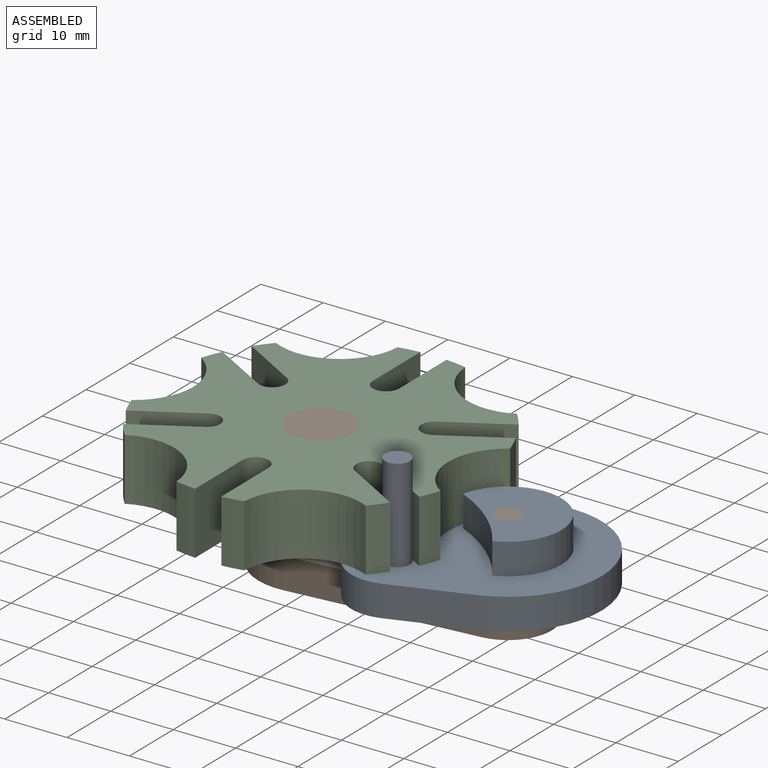
[diagram: assembled view]
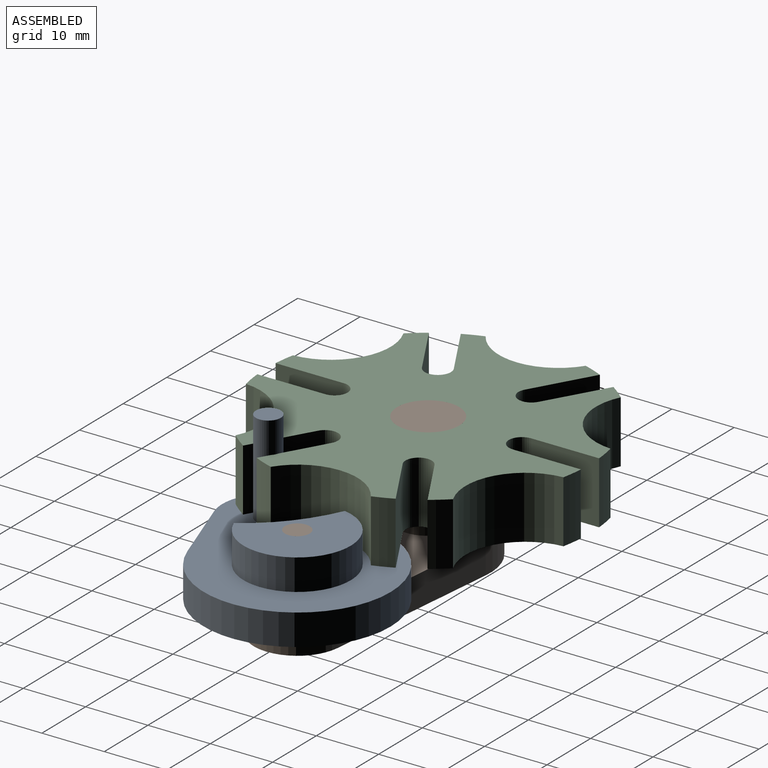
[diagram: assembled view, second angle]
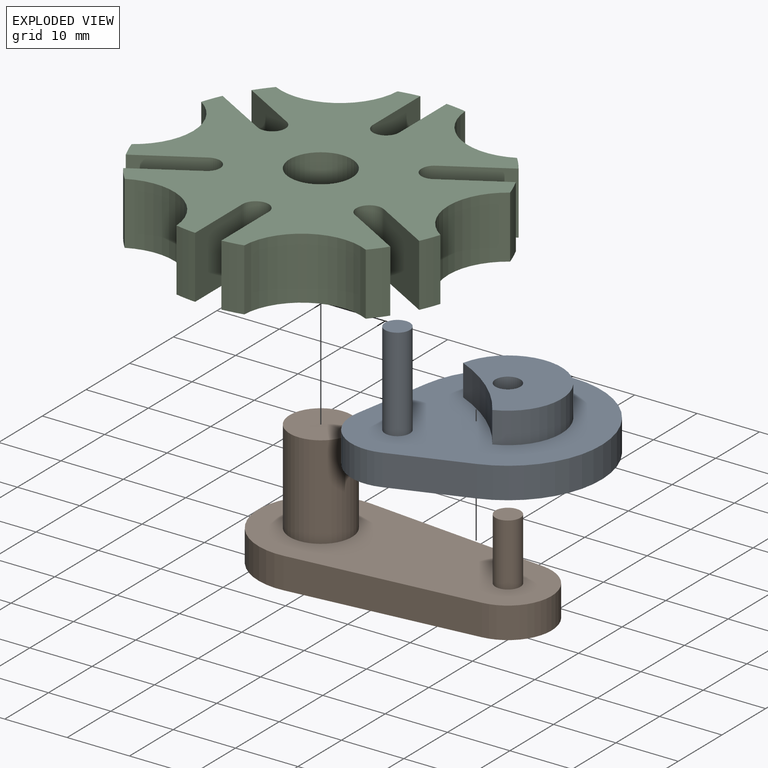
[diagram: exploded view]
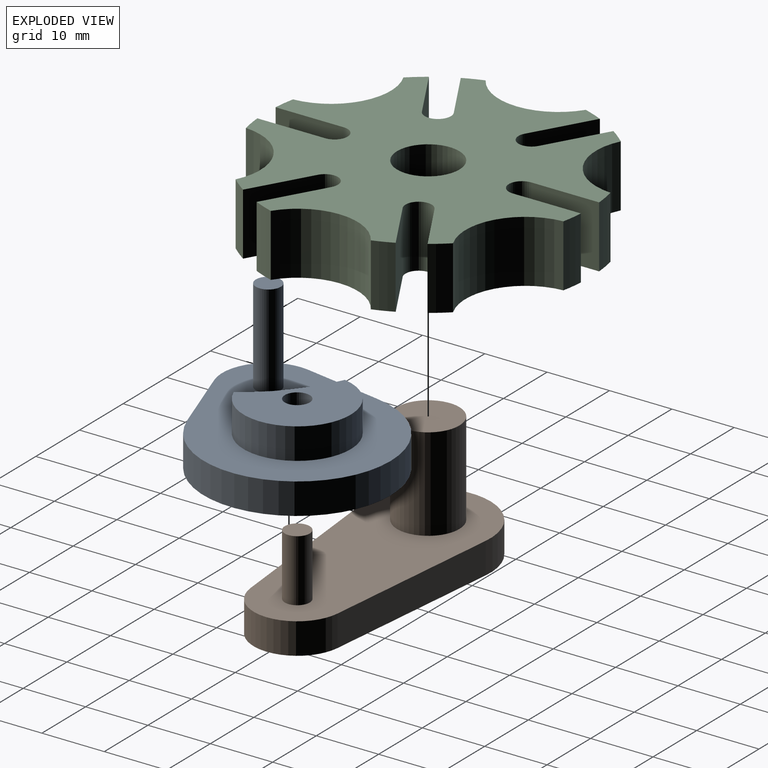
[diagram: exploded view, second angle]
ASSEMBLY  parts=3 mates=2
PART A: 12 faces, bbox 37.4x20x30 mm
  f0: plane 37.4x30mm, normal (0,-1,0), area 634mm2, adj f1,f2,f3,f4,f6,f7,f9
  f1: plane 11.15x6.55mm, normal (-0.51,0,-0.86), area 64.7mm2, adj f0,f2,f4,f5
  f2: cylinder r=15mm len=30mm, axis (0,-1,0), area 315.3mm2, adj f0,f1,f3,f5
  f3: plane 11.15x6.55mm, normal (-0.51,0,0.86), area 64.7mm2, adj f0,f2,f4,f5
  f4: cylinder r=7.4mm len=12.76mm, axis (0,-1,0), area 76.9mm2, adj f0,f1,f3,f5
  f5: plane 37.4x30mm, normal (0,1,0), area 807mm2, adj f1,f2,f3,f4,f11
  f6: cylinder r=26.98mm len=15.12mm, axis (0,1,0), area 76.6mm2, adj f0,f7,f8
  f7: cylinder r=8.6mm len=17.2mm, axis (0,1,0), area 177.8mm2, adj f0,f6,f8
  f8: plane 17.2x12.7mm, normal (0,-1,0), area 160.4mm2, adj f6,f7,f11
  f9: cylinder r=2mm len=15mm, axis (0,1,0), area 188.5mm2, adj f0,f10
  f10: plane 4x4mm, normal (0,-1,0), area 12.6mm2, adj f9
  f11: cylinder r=2mm len=10mm, axis (0,1,0), area 125.7mm2, adj f5,f8
PART B: 10 faces, bbox 47x20x20 mm
  f0: cylinder r=2mm len=10mm, axis (0,-1,0), area 125.7mm2, adj f1,f6
  f1: plane 4x4mm, normal (0,-1,0), area 12.6mm2, adj f0
  f2: plane 29.7x5mm, normal (0.1,0,-0.99), area 149.2mm2, adj f3,f5,f6,f7
  f3: cylinder r=10mm len=20mm, axis (0,1,0), area 167.1mm2, adj f2,f4,f6,f7
  f4: plane 29.7x5mm, normal (0.1,0,0.99), area 149.2mm2, adj f3,f5,f6,f7
  f5: cylinder r=7mm len=13.93mm, axis (0,1,0), area 102.9mm2, adj f2,f4,f6,f7
  f6: plane 47x20mm, normal (0,-1,0), area 655.5mm2, adj f0,f2,f3,f4,f5,f8
  f7: plane 47x20mm, normal (0,1,0), area 746.6mm2, adj f2,f3,f4,f5
  f8: cylinder r=5mm len=15mm, axis (0,1,0), area 471.2mm2, adj f6,f9
  f9: plane 10x10mm, normal (0,-1,0), area 78.5mm2, adj f8
PART C: 39 faces, bbox 49.4x10x51.8 mm
  f0: cylinder r=25.98mm len=10mm, axis (0,1,0), area 33.5mm2, adj f1,f36,f37,f38
  f1: plane 10x9.44mm, normal (-0.5,0,0.87), area 109mm2, adj f0,f2,f37,f38
  f2: cylinder r=2.1mm len=10mm, axis (0,1,0), area 66mm2, adj f1,f3,f37,f38
  f3: plane 10x9.44mm, normal (0.5,0,-0.87), area 109mm2, adj f2,f4,f37,f38
  f4: cylinder r=25.98mm len=10mm, axis (0,1,0), area 33.5mm2, adj f3,f5,f37,f38
  f5: cylinder r=9.6mm len=13.88mm, axis (0,1,0), area 189.6mm2, adj f4,f6,f37,f38
  f6: cylinder r=25.98mm len=10mm, axis (0,1,0), area 33.5mm2, adj f5,f7,f37,f38
  f7: plane 10.9x10mm, normal (-1,0,0), area 109mm2, adj f6,f8,f37,f38
  f8: cylinder r=2.1mm len=10mm, axis (0,1,0), area 66mm2, adj f7,f9,f37,f38
  f9: plane 10.9x10mm, normal (1,0,0), area 109mm2, adj f8,f10,f37,f38
  f10: cylinder r=25.98mm len=10mm, axis (0,1,0), area 33.5mm2, adj f9,f11,f37,f38
  f11: cylinder r=9.6mm len=13.88mm, axis (0,1,0), area 189.6mm2, adj f10,f12,f37,f38
  f12: cylinder r=25.98mm len=10mm, axis (0,1,0), area 33.5mm2, adj f11,f13,f37,f38
  f13: plane 10x9.44mm, normal (-0.5,0,-0.87), area 109mm2, adj f12,f14,f37,f38
  f14: cylinder r=2.1mm len=10mm, axis (0,1,0), area 66mm2, adj f13,f15,f37,f38
  f15: plane 10x9.44mm, normal (0.5,0,0.87), area 109mm2, adj f14,f16,f37,f38
  f16: cylinder r=25.98mm len=10mm, axis (0,1,0), area 33.5mm2, adj f15,f17,f37,f38
  f17: cylinder r=9.6mm len=16.03mm, axis (0,1,0), area 189.6mm2, adj f16,f18,f37,f38
  f18: cylinder r=25.98mm len=10mm, axis (0,1,0), area 33.5mm2, adj f17,f19,f37,f38
  f19: plane 10x9.44mm, normal (0.5,0,-0.87), area 109mm2, adj f18,f20,f37,f38
  f20: cylinder r=2.1mm len=10mm, axis (0,1,0), area 66mm2, adj f19,f21,f37,f38
  f21: plane 10x9.44mm, normal (-0.5,0,0.87), area 109mm2, adj f20,f22,f37,f38
  f22: cylinder r=25.98mm len=10mm, axis (0,1,0), area 33.5mm2, adj f21,f23,f37,f38
  f23: cylinder r=9.6mm len=13.88mm, axis (0,1,0), area 189.6mm2, adj f22,f24,f37,f38
  f24: cylinder r=25.98mm len=10mm, axis (0,1,0), area 33.5mm2, adj f23,f25,f37,f38
  f25: plane 10.9x10mm, normal (1,0,0), area 109mm2, adj f24,f26,f37,f38
  f26: cylinder r=2.1mm len=10mm, axis (0,1,0), area 66mm2, adj f25,f27,f37,f38
  f27: plane 10.9x10mm, normal (-1,0,0), area 109mm2, adj f26,f28,f37,f38
  f28: cylinder r=25.98mm len=10mm, axis (0,1,0), area 33.5mm2, adj f27,f29,f37,f38
  f29: cylinder r=9.6mm len=13.88mm, axis (0,1,0), area 189.6mm2, adj f28,f30,f37,f38
  f30: cylinder r=25.98mm len=10mm, axis (0,1,0), area 33.5mm2, adj f29,f31,f37,f38
  f31: plane 10x9.44mm, normal (0.5,0,0.87), area 109mm2, adj f30,f32,f37,f38
  f32: cylinder r=2.1mm len=10mm, axis (0,1,0), area 66mm2, adj f31,f33,f37,f38
  f33: plane 10x9.44mm, normal (-0.5,0,-0.87), area 109mm2, adj f32,f34,f37,f38
  f34: cylinder r=25.98mm len=10mm, axis (0,1,0), area 33.5mm2, adj f33,f36,f37,f38
  f35: cylinder r=5mm len=10mm, axis (0,1,0), area 314.2mm2, adj f37,f38
  f36: cylinder r=9.6mm len=16.03mm, axis (0,1,0), area 189.6mm2, adj f0,f34,f37,f38
  f37: plane 51.79x49.43mm, normal (0,-1,0), area 1350.9mm2, adj f0,f1,f2,f3,f4,f5,f6,f7
  f38: plane 51.79x49.43mm, normal (0,1,0), area 1350.9mm2, adj f0,f1,f2,f3,f4,f5,f6,f7
PLACE A rot(axis=(-0.84,-0.39,0.39),100.2deg) t=(-1.69,-21.51,7.66)mm
PLACE B rot(axis=(-1,0,0),90deg) t=(-12.27,1.36,7.66)mm fixed
PLACE C rot(axis=(-1,0,0),90deg) t=(-12.27,1.36,7.66)mm
MATE revolute C.f34 <-> B.f8  axis (0,0,1) through (-12.27,1.36,17.66)mm
MATE revolute A.f7 <-> B.f0  axis (0,0,1) through (17.73,1.36,12.66)mm
